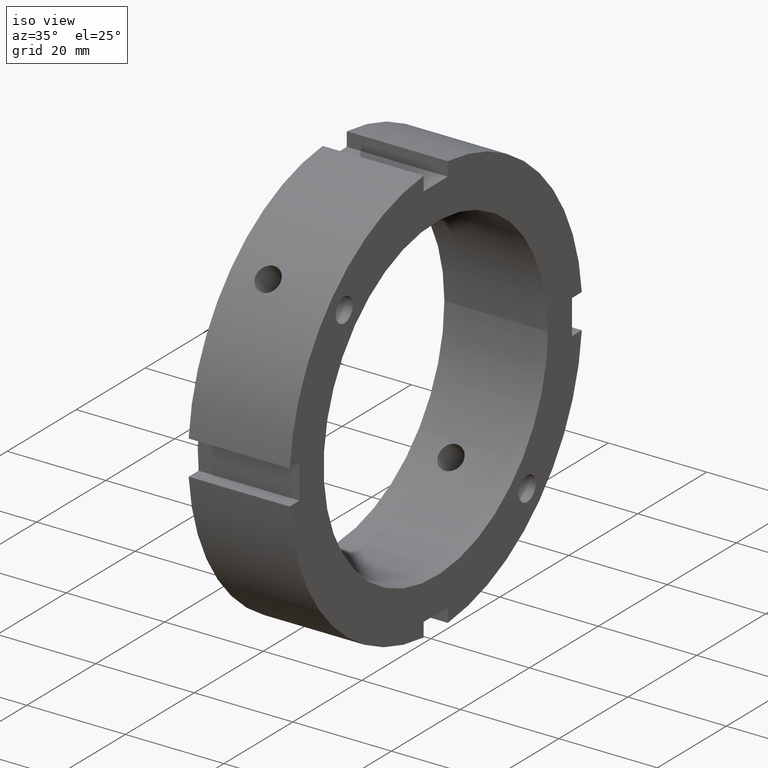
[diagram: clean part render]
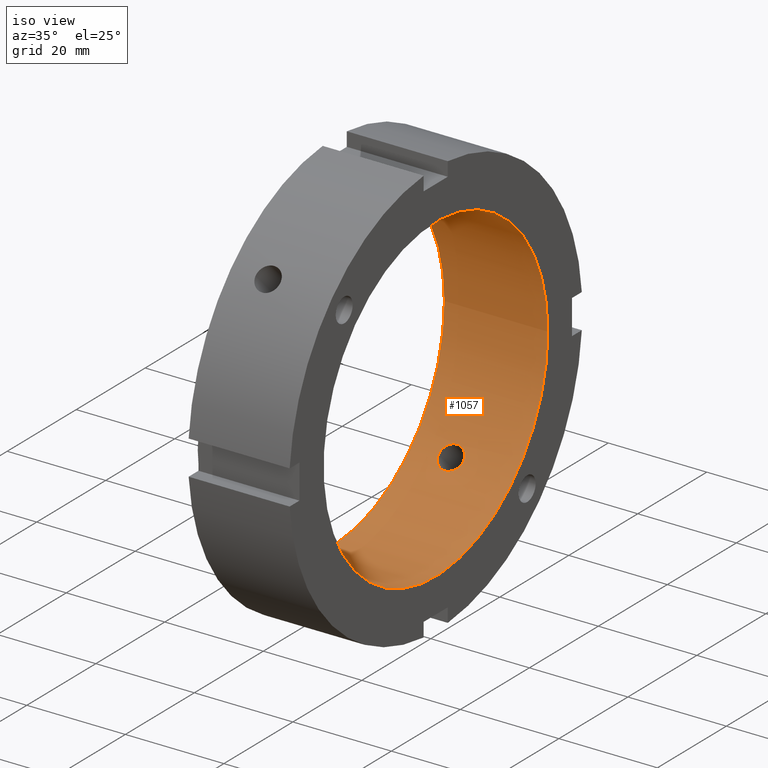
[diagram: same view with one face highlighted and labeled with its STEP entity id]
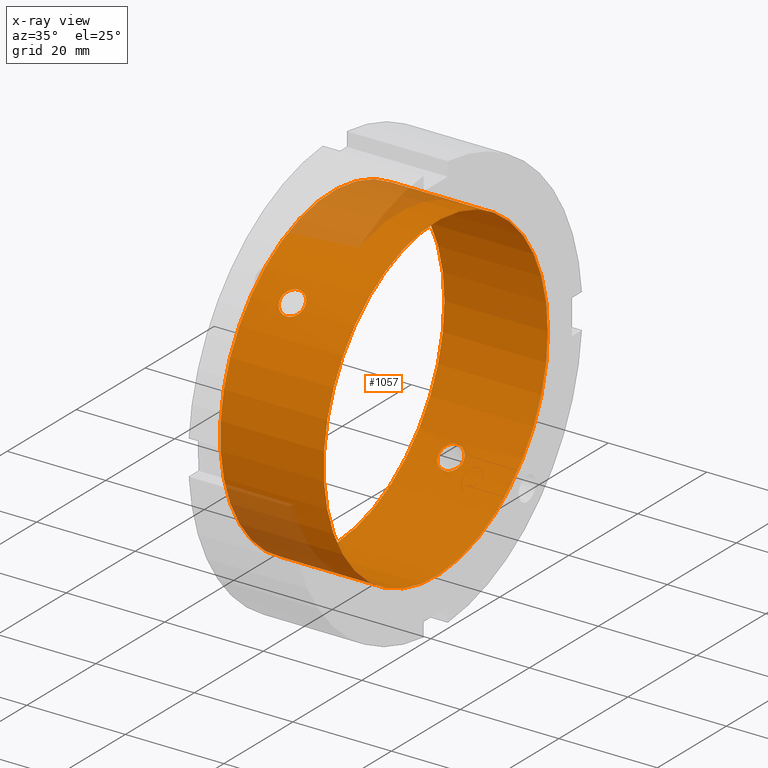
[diagram: x-ray of the same camera — body ghosted, the highlighted face saturated]
A machine part, iso view. The second image highlights one B-rep face of the part: STEP entity #1057.
The next image is the same camera in x-ray: the body ghosted, the highlighted face saturated — about 11% of this face is hidden behind the body in this view.
In plain terms, the highlighted cylindrical surface (bore or boss wall) has radius 32.5 mm, axis along (1, 0, 0).
Its self-contained STEP definition (entity closure, byte-faithful):
#199=CARTESIAN_POINT('',(7.999999999999991,-24.680645427745567,21.145111521812829));
#200=VERTEX_POINT('',#199);
#201=CARTESIAN_POINT('',(7.99999999999999,-24.680645427745564,21.145111521812833));
#202=CARTESIAN_POINT('',(8.314038878983576,-24.680645427745564,21.145111521812833));
#203=CARTESIAN_POINT('',(8.648925005757855,-24.639809402754441,21.19306852534034));
#204=CARTESIAN_POINT('',(9.264836526164977,-24.47223021467719,21.386358016310329));
#205=CARTESIAN_POINT('',(9.54587248121117,-24.345305718344221,21.53149954697242));
#206=CARTESIAN_POINT('',(9.9896611612899,-24.048593834497616,21.862399633320809));
#207=CARTESIAN_POINT('',(10.18204109753996,-23.858968067764383,22.070218890903696));
#208=CARTESIAN_POINT('',(10.437213945238454,-23.436280801691414,22.518562594759707));
#209=CARTESIAN_POINT('',(10.499999999999989,-23.203029145821318,22.758911631304272));
#210=CARTESIAN_POINT('',(10.499999999999993,-22.758911631304272,23.203029145821308));
#211=CARTESIAN_POINT('',(10.43721394523846,-22.518562594759715,23.436280801691403));
#212=CARTESIAN_POINT('',(10.182041097539971,-22.070218890903703,23.858968067764373));
#213=CARTESIAN_POINT('',(9.989661161289906,-21.862399633320813,24.048593834497613));
#214=CARTESIAN_POINT('',(9.54587248121118,-21.531499546972427,24.345305718344221));
#215=CARTESIAN_POINT('',(9.264836526164995,-21.386358016310322,24.472230214677193));
#216=CARTESIAN_POINT('',(8.648925005757871,-21.19306852534033,24.639809402754445));
#217=CARTESIAN_POINT('',(8.314038878983578,-21.145111521812833,24.68064542774556));
#218=CARTESIAN_POINT('',(7.685961121016405,-21.145111521812833,24.68064542774556));
#219=CARTESIAN_POINT('',(7.351074994242113,-21.19306852534033,24.639809402754445));
#220=CARTESIAN_POINT('',(6.735163473834989,-21.386358016310322,24.472230214677193));
#221=CARTESIAN_POINT('',(6.454127518788804,-21.531499546972427,24.345305718344221));
#222=CARTESIAN_POINT('',(6.010338838710077,-21.862399633320813,24.048593834497613));
#223=CARTESIAN_POINT('',(5.817958902460014,-22.070218890903703,23.858968067764373));
#224=CARTESIAN_POINT('',(5.562786054761525,-22.518562594759715,23.436280801691403));
#225=CARTESIAN_POINT('',(5.499999999999989,-22.758911631304272,23.203029145821308));
#226=CARTESIAN_POINT('',(5.499999999999994,-23.203029145821318,22.758911631304272));
#227=CARTESIAN_POINT('',(5.562786054761528,-23.436280801691414,22.518562594759707));
#228=CARTESIAN_POINT('',(5.817958902460024,-23.858968067764383,22.070218890903696));
#229=CARTESIAN_POINT('',(6.010338838710082,-24.048593834497616,21.862399633320809));
#230=CARTESIAN_POINT('',(6.454127518788813,-24.345305718344221,21.53149954697242));
#231=CARTESIAN_POINT('',(6.735163473835005,-24.47223021467719,21.386358016310329));
#232=CARTESIAN_POINT('',(7.351074994242128,-24.639809402754441,21.19306852534034));
#233=CARTESIAN_POINT('',(7.685961121016406,-24.680645427745564,21.145111521812833));
#234=CARTESIAN_POINT('',(7.999999999999991,-24.680645427745564,21.145111521812833));
#235=B_SPLINE_CURVE_WITH_KNOTS('',3,(#201,#202,#203,#204,#205,#206,#207,#208,#209,#210,#211,#212,#213,#214,#215,#216,#217,#218,#219,#220,#221,#222,#223,#224,#225,#226,#227,#228,#229,#230,#231,#232,#233,#234),.UNSPECIFIED.,.T.,.U.,(4,2,2,2,2,2,2,2,2,2,2,2,2,2,2,2,4),(0.0,0.094211663695076,0.188423327390152,0.282634879237766,0.376846431085381,0.471057982932996,0.56526953478061,0.659481198475686,0.753692862170762,0.847904525865838,0.942116189560914,1.036327741408529,1.130539293256143,1.224750845103758,1.318962396951373,1.413174060646449,1.507385724341524),.UNSPECIFIED.);
#236=EDGE_CURVE('',#200,#200,#235,.T.);
#372=CARTESIAN_POINT('',(7.999999999999991,21.145111521812826,-24.680645427745574));
#373=VERTEX_POINT('',#372);
#374=CARTESIAN_POINT('',(7.99999999999999,21.145111521812829,-24.680645427745567));
#375=CARTESIAN_POINT('',(7.685961121016404,21.145111521812829,-24.680645427745567));
#376=CARTESIAN_POINT('',(7.351074994242113,21.19306852534033,-24.639809402754445));
#377=CARTESIAN_POINT('',(6.735163473834989,21.386358016310322,-24.472230214677193));
#378=CARTESIAN_POINT('',(6.454127518788804,21.531499546972427,-24.345305718344221));
#379=CARTESIAN_POINT('',(6.010338838710078,21.862399633320813,-24.048593834497613));
#380=CARTESIAN_POINT('',(5.817958902460013,22.070218890903703,-23.858968067764373));
#381=CARTESIAN_POINT('',(5.562786054761524,22.518562594759715,-23.436280801691403));
#382=CARTESIAN_POINT('',(5.499999999999989,22.758911631304272,-23.203029145821308));
#383=CARTESIAN_POINT('',(5.499999999999994,23.203029145821318,-22.758911631304272));
#384=CARTESIAN_POINT('',(5.562786054761528,23.436280801691414,-22.518562594759707));
#385=CARTESIAN_POINT('',(5.817958902460024,23.858968067764383,-22.070218890903696));
#386=CARTESIAN_POINT('',(6.010338838710082,24.048593834497616,-21.862399633320809));
#387=CARTESIAN_POINT('',(6.454127518788813,24.345305718344221,-21.53149954697242));
#388=CARTESIAN_POINT('',(6.735163473835003,24.47223021467719,-21.386358016310329));
#389=CARTESIAN_POINT('',(7.351074994242127,24.639809402754441,-21.19306852534034));
#390=CARTESIAN_POINT('',(7.685961121016407,24.680645427745574,-21.145111521812822));
#391=CARTESIAN_POINT('',(8.314038878983576,24.680645427745567,-21.145111521812822));
#392=CARTESIAN_POINT('',(8.648925005757853,24.639809402754441,-21.19306852534034));
#393=CARTESIAN_POINT('',(9.264836526164981,24.47223021467719,-21.386358016310329));
#394=CARTESIAN_POINT('',(9.54587248121117,24.345305718344221,-21.53149954697242));
#395=CARTESIAN_POINT('',(9.9896611612899,24.048593834497616,-21.862399633320809));
#396=CARTESIAN_POINT('',(10.18204109753996,23.858968067764383,-22.070218890903696));
#397=CARTESIAN_POINT('',(10.437213945238454,23.436280801691414,-22.518562594759707));
#398=CARTESIAN_POINT('',(10.499999999999989,23.203029145821318,-22.758911631304272));
#399=CARTESIAN_POINT('',(10.499999999999993,22.758911631304272,-23.203029145821308));
#400=CARTESIAN_POINT('',(10.43721394523846,22.518562594759715,-23.436280801691403));
#401=CARTESIAN_POINT('',(10.182041097539971,22.070218890903703,-23.858968067764373));
#402=CARTESIAN_POINT('',(9.989661161289904,21.862399633320813,-24.048593834497613));
#403=CARTESIAN_POINT('',(9.545872481211177,21.531499546972427,-24.345305718344221));
#404=CARTESIAN_POINT('',(9.264836526164993,21.386358016310322,-24.472230214677193));
#405=CARTESIAN_POINT('',(8.648925005757869,21.19306852534033,-24.639809402754445));
#406=CARTESIAN_POINT('',(8.314038878983578,21.145111521812829,-24.680645427745574));
#407=CARTESIAN_POINT('',(7.999999999999991,21.145111521812829,-24.680645427745574));
#408=B_SPLINE_CURVE_WITH_KNOTS('',3,(#374,#375,#376,#377,#378,#379,#380,#381,#382,#383,#384,#385,#386,#387,#388,#389,#390,#391,#392,#393,#394,#395,#396,#397,#398,#399,#400,#401,#402,#403,#404,#405,#406,#407),.UNSPECIFIED.,.T.,.U.,(4,2,2,2,2,2,2,2,2,2,2,2,2,2,2,2,4),(0.0,0.094211663695076,0.188423327390152,0.282634879237766,0.376846431085381,0.471057982932996,0.56526953478061,0.659481198475686,0.753692862170762,0.847904525865838,0.942116189560914,1.036327741408528,1.130539293256143,1.224750845103758,1.318962396951372,1.413174060646449,1.507385724341524),.UNSPECIFIED.);
#409=EDGE_CURVE('',#373,#373,#408,.T.);
#888=CARTESIAN_POINT('',(20.999999999999993,32.5,0.0));
#889=VERTEX_POINT('',#888);
#890=CARTESIAN_POINT('',(20.999999999999993,0.0,0.0));
#891=DIRECTION('',(1.0,0.0,0.0));
#892=DIRECTION('',(0.0,1.0,0.0));
#893=AXIS2_PLACEMENT_3D('',#890,#891,#892);
#894=CIRCLE('',#893,32.5);
#895=EDGE_CURVE('',#889,#889,#894,.T.);
#981=CARTESIAN_POINT('',(-9.056603E-015,32.5,0.0));
#982=VERTEX_POINT('',#981);
#983=CARTESIAN_POINT('',(-9.055257E-015,0.0,0.0));
#984=DIRECTION('',(1.0,0.0,0.0));
#985=DIRECTION('',(0.0,1.0,0.0));
#986=AXIS2_PLACEMENT_3D('',#983,#984,#985);
#987=CIRCLE('',#986,32.5);
#988=EDGE_CURVE('',#982,#982,#987,.T.);
#1040=CARTESIAN_POINT('',(10.499999999999991,0.0,0.0));
#1041=DIRECTION('',(1.0,0.0,0.0));
#1042=DIRECTION('',(0.0,1.0,0.0));
#1043=AXIS2_PLACEMENT_3D('',#1040,#1041,#1042);
#1044=CYLINDRICAL_SURFACE('',#1043,32.5);
#1045=ORIENTED_EDGE('',*,*,#988,.F.);
#1046=EDGE_LOOP('',(#1045));
#1047=FACE_OUTER_BOUND('',#1046,.T.);
#1048=ORIENTED_EDGE('',*,*,#236,.T.);
#1049=EDGE_LOOP('',(#1048));
#1050=FACE_BOUND('',#1049,.T.);
#1051=ORIENTED_EDGE('',*,*,#409,.T.);
#1052=EDGE_LOOP('',(#1051));
#1053=FACE_BOUND('',#1052,.T.);
#1054=ORIENTED_EDGE('',*,*,#895,.T.);
#1055=EDGE_LOOP('',(#1054));
#1056=FACE_BOUND('',#1055,.T.);
#1057=ADVANCED_FACE('',(#1047,#1050,#1053,#1056),#1044,.F.);